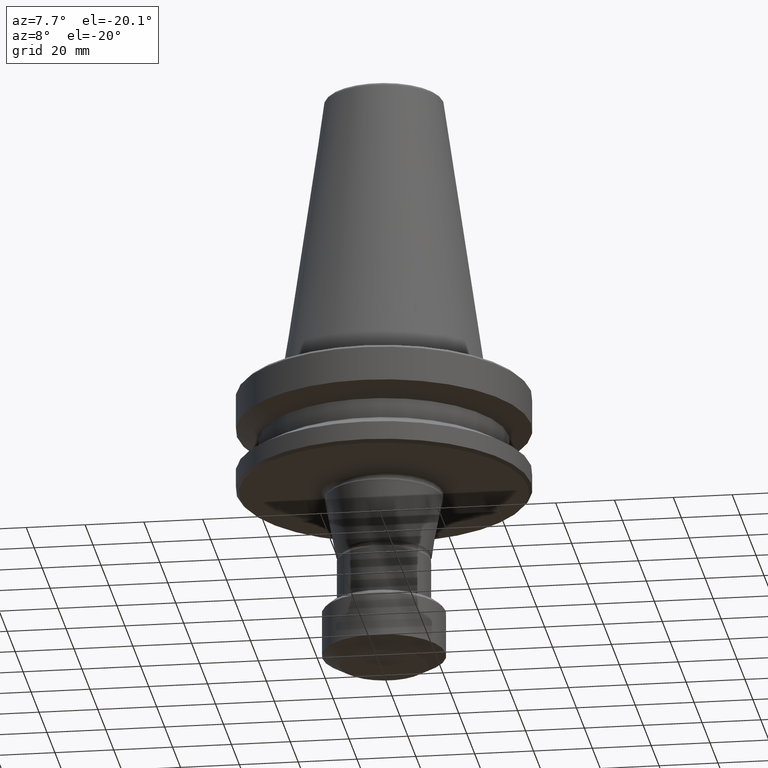
[diagram: clean part render]
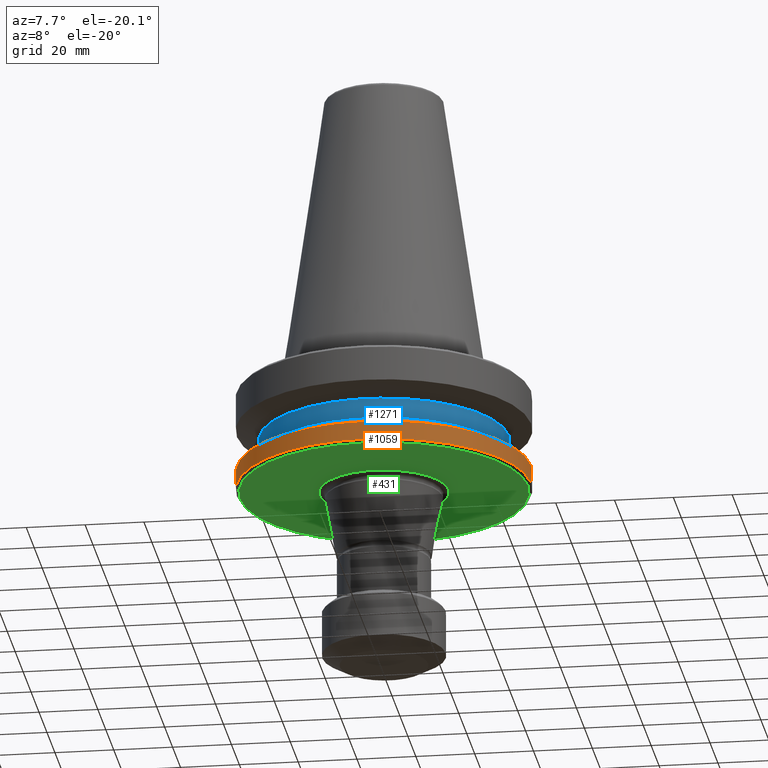
[diagram: same view with three faces highlighted in distinct colors, each labeled with its STEP entity id]
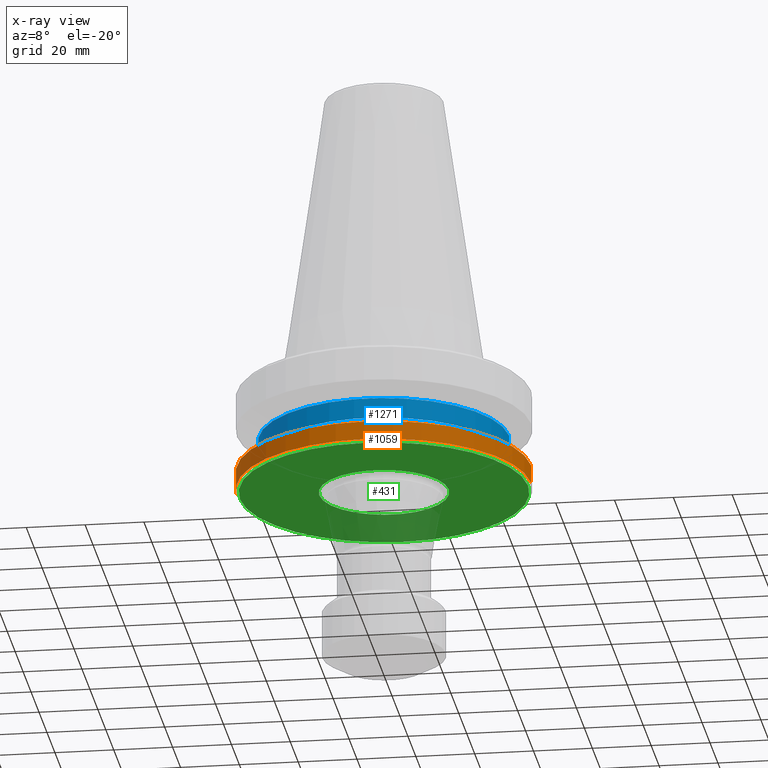
[diagram: x-ray of the same camera — body ghosted, the three highlighted faces saturated]
A machine part, auxiliary view with three faces highlighted in distinct colors.
The next image is the same camera in x-ray (body ghosted, the three faces saturated) — at least one of them is partly hidden behind the body in this view.
Their STEP definitions:

[orange] entity #1059 — the highlighted cylindrical surface (partial cylindrical patch) has radius 50 mm, axis along (-0, -0, 1).
#14 = DIRECTION ( 'NONE',  ( 1.000000000000000000, 0.0000000000000000000, 0.0000000000000000000 ) ) ;
#132 = LINE ( 'NONE', #1228, #381 ) ;
#133 = VECTOR ( 'NONE', #1341, 1000.000000000000000 ) ;
#135 = DIRECTION ( 'NONE',  ( -0.0000000000000000000, -0.0000000000000000000, 1.000000000000000000 ) ) ;
#151 = ORIENTED_EDGE ( 'NONE', *, *, #1007, .F. ) ;
#225 = EDGE_CURVE ( 'NONE', #1255, #874, #1166, .T. ) ;
#244 = CARTESIAN_POINT ( 'NONE',  ( 0.0000000000000000000, 0.0000000000000000000, 107.2567600161838600 ) ) ;
#248 = CARTESIAN_POINT ( 'NONE',  ( -50.00000000000704100, 6.123233995737628300E-015, 107.2567600161838600 ) ) ;
#290 = DIRECTION ( 'NONE',  ( 1.000000000000000000, 0.0000000000000000000, 0.0000000000000000000 ) ) ;
#293 = FACE_OUTER_BOUND ( 'NONE', #1067, .T. ) ;
#343 = CARTESIAN_POINT ( 'NONE',  ( -50.00000000000704100, 6.123233995737628300E-015, -30.69977999677519900 ) ) ;
#348 = AXIS2_PLACEMENT_3D ( 'NONE', #244, #135, #14 ) ;
#381 = VECTOR ( 'NONE', #591, 1000.000000000000000 ) ;
#411 = DIRECTION ( 'NONE',  ( -0.0000000000000000000, -0.0000000000000000000, 1.000000000000000000 ) ) ;
#470 = EDGE_CURVE ( 'NONE', #1255, #1045, #1296, .T. ) ;
#475 = VERTEX_POINT ( 'NONE', #802 ) ;
#542 = CARTESIAN_POINT ( 'NONE',  ( 0.0000000000000000000, 0.0000000000000000000, -30.69977999677519900 ) ) ;
#588 = CARTESIAN_POINT ( 'NONE',  ( -50.00000000000704100, 6.123233995737627500E-015, -37.00000000000214600 ) ) ;
#591 = DIRECTION ( 'NONE',  ( -0.0000000000000000000, -0.0000000000000000000, 1.000000000000000000 ) ) ;
#596 = CARTESIAN_POINT ( 'NONE',  ( 0.0000000000000000000, 0.0000000000000000000, -37.00000000000214600 ) ) ;
#658 = DIRECTION ( 'NONE',  ( 1.000000000000000000, 0.0000000000000000000, 0.0000000000000000000 ) ) ;
#741 = CARTESIAN_POINT ( 'NONE',  ( 50.00000000000704100, 0.0000000000000000000, -37.00000000000214600 ) ) ;
#802 = CARTESIAN_POINT ( 'NONE',  ( 50.00000000000704100, 0.0000000000000000000, -30.69977999677519900 ) ) ;
#874 = VERTEX_POINT ( 'NONE', #741 ) ;
#888 = CIRCLE ( 'NONE', #1112, 50.00000000000704100 ) ;
#1007 = EDGE_CURVE ( 'NONE', #1045, #475, #888, .T. ) ;
#1039 = ORIENTED_EDGE ( 'NONE', *, *, #470, .F. ) ;
#1045 = VERTEX_POINT ( 'NONE', #343 ) ;
#1059 = ADVANCED_FACE ( 'NONE', ( #293 ), #1387, .T. ) ;
#1067 = EDGE_LOOP ( 'NONE', ( #1039, #1327, #1221, #151 ) ) ;
#1112 = AXIS2_PLACEMENT_3D ( 'NONE', #542, #1290, #658 ) ;
#1166 = CIRCLE ( 'NONE', #1242, 50.00000000000704100 ) ;
#1221 = ORIENTED_EDGE ( 'NONE', *, *, #1274, .T. ) ;
#1228 = CARTESIAN_POINT ( 'NONE',  ( 50.00000000000704100, 0.0000000000000000000, 107.2567600161838600 ) ) ;
#1242 = AXIS2_PLACEMENT_3D ( 'NONE', #596, #411, #290 ) ;
#1255 = VERTEX_POINT ( 'NONE', #588 ) ;
#1274 = EDGE_CURVE ( 'NONE', #874, #475, #132, .T. ) ;
#1290 = DIRECTION ( 'NONE',  ( -0.0000000000000000000, -0.0000000000000000000, 1.000000000000000000 ) ) ;
#1296 = LINE ( 'NONE', #248, #133 ) ;
#1327 = ORIENTED_EDGE ( 'NONE', *, *, #225, .T. ) ;
#1341 = DIRECTION ( 'NONE',  ( -0.0000000000000000000, -0.0000000000000000000, 1.000000000000000000 ) ) ;
#1387 = CYLINDRICAL_SURFACE ( 'NONE', #348, 50.00000000000704100 ) ;

[blue] entity #1271 — the highlighted cylindrical surface (partial cylindrical patch) has radius 42.5 mm, axis along (-0, -0, 1).
#16 = ORIENTED_EDGE ( 'NONE', *, *, #736, .F. ) ;
#35 = CARTESIAN_POINT ( 'NONE',  ( -42.49999999999965200, 5.204748896376208300E-015, -26.70000000000111100 ) ) ;
#52 = LINE ( 'NONE', #182, #1149 ) ;
#59 = CARTESIAN_POINT ( 'NONE',  ( 0.0000000000000000000, 0.0000000000000000000, -26.70000000000111100 ) ) ;
#67 = VECTOR ( 'NONE', #1124, 1000.000000000000000 ) ;
#88 = VERTEX_POINT ( 'NONE', #1116 ) ;
#101 = CARTESIAN_POINT ( 'NONE',  ( -42.49999999999965200, 5.204748896376208300E-015, -19.70000000000071700 ) ) ;
#152 = VERTEX_POINT ( 'NONE', #101 ) ;
#179 = EDGE_CURVE ( 'NONE', #88, #723, #640, .T. ) ;
#182 = CARTESIAN_POINT ( 'NONE',  ( -42.49999999999965200, 5.204748896376208300E-015, 107.2567600161838600 ) ) ;
#286 = EDGE_CURVE ( 'NONE', #152, #723, #653, .T. ) ;
#410 = ORIENTED_EDGE ( 'NONE', *, *, #286, .F. ) ;
#415 = FACE_OUTER_BOUND ( 'NONE', #770, .T. ) ;
#455 = EDGE_CURVE ( 'NONE', #1079, #88, #980, .T. ) ;
#488 = ORIENTED_EDGE ( 'NONE', *, *, #455, .T. ) ;
#577 = DIRECTION ( 'NONE',  ( 1.000000000000000000, 0.0000000000000000000, 0.0000000000000000000 ) ) ;
#631 = AXIS2_PLACEMENT_3D ( 'NONE', #933, #831, #929 ) ;
#640 = LINE ( 'NONE', #915, #67 ) ;
#653 = CIRCLE ( 'NONE', #631, 42.49999999999965200 ) ;
#695 = CARTESIAN_POINT ( 'NONE',  ( 0.0000000000000000000, 0.0000000000000000000, 107.2567600161838600 ) ) ;
#707 = CARTESIAN_POINT ( 'NONE',  ( 42.49999999999965200, 0.0000000000000000000, -19.70000000000071700 ) ) ;
#723 = VERTEX_POINT ( 'NONE', #707 ) ;
#736 = EDGE_CURVE ( 'NONE', #1079, #152, #52, .T. ) ;
#760 = ORIENTED_EDGE ( 'NONE', *, *, #179, .T. ) ;
#770 = EDGE_LOOP ( 'NONE', ( #16, #488, #760, #410 ) ) ;
#831 = DIRECTION ( 'NONE',  ( -0.0000000000000000000, -0.0000000000000000000, 1.000000000000000000 ) ) ;
#856 = DIRECTION ( 'NONE',  ( -0.0000000000000000000, -0.0000000000000000000, 1.000000000000000000 ) ) ;
#915 = CARTESIAN_POINT ( 'NONE',  ( 42.49999999999965200, 0.0000000000000000000, 107.2567600161838600 ) ) ;
#921 = DIRECTION ( 'NONE',  ( -0.0000000000000000000, -0.0000000000000000000, 1.000000000000000000 ) ) ;
#929 = DIRECTION ( 'NONE',  ( 1.000000000000000000, 0.0000000000000000000, 0.0000000000000000000 ) ) ;
#933 = CARTESIAN_POINT ( 'NONE',  ( 0.0000000000000000000, 0.0000000000000000000, -19.70000000000071700 ) ) ;
#944 = CYLINDRICAL_SURFACE ( 'NONE', #1035, 42.49999999999965200 ) ;
#980 = CIRCLE ( 'NONE', #1174, 42.49999999999965200 ) ;
#1014 = DIRECTION ( 'NONE',  ( 1.000000000000000000, 0.0000000000000000000, 0.0000000000000000000 ) ) ;
#1035 = AXIS2_PLACEMENT_3D ( 'NONE', #695, #1331, #1014 ) ;
#1079 = VERTEX_POINT ( 'NONE', #35 ) ;
#1116 = CARTESIAN_POINT ( 'NONE',  ( 42.49999999999965200, 0.0000000000000000000, -26.70000000000111100 ) ) ;
#1124 = DIRECTION ( 'NONE',  ( -0.0000000000000000000, -0.0000000000000000000, 1.000000000000000000 ) ) ;
#1149 = VECTOR ( 'NONE', #921, 1000.000000000000000 ) ;
#1174 = AXIS2_PLACEMENT_3D ( 'NONE', #59, #856, #577 ) ;
#1271 = ADVANCED_FACE ( 'NONE', ( #415 ), #944, .T. ) ;
#1331 = DIRECTION ( 'NONE',  ( -0.0000000000000000000, -0.0000000000000000000, 1.000000000000000000 ) ) ;

[green] entity #431 — the highlighted planar face has unit normal (0, -0, 1).
#81 = VERTEX_POINT ( 'NONE', #963 ) ;
#137 = CIRCLE ( 'NONE', #1110, 49.00000000000703400 ) ;
#146 = EDGE_LOOP ( 'NONE', ( #1084, #794 ) ) ;
#161 = EDGE_CURVE ( 'NONE', #808, #616, #137, .T. ) ;
#173 = DIRECTION ( 'NONE',  ( -0.0000000000000000000, -0.0000000000000000000, 1.000000000000000000 ) ) ;
#211 = DIRECTION ( 'NONE',  ( 1.000000000000000000, 0.0000000000000000000, 0.0000000000000000000 ) ) ;
#214 = AXIS2_PLACEMENT_3D ( 'NONE', #809, #173, #914 ) ;
#246 = DIRECTION ( 'NONE',  ( -0.0000000000000000000, -0.0000000000000000000, 1.000000000000000000 ) ) ;
#323 = EDGE_CURVE ( 'NONE', #334, #81, #1362, .T. ) ;
#334 = VERTEX_POINT ( 'NONE', #1334 ) ;
#365 = CARTESIAN_POINT ( 'NONE',  ( 0.0000000000000000000, 49.00000000000703400, -38.00000000000214600 ) ) ;
#367 = EDGE_CURVE ( 'NONE', #81, #334, #765, .T. ) ;
#407 = CARTESIAN_POINT ( 'NONE',  ( 49.00000000000703400, 0.0000000000000000000, -38.00000000000214600 ) ) ;
#431 = ADVANCED_FACE ( 'NONE', ( #1017, #1263 ), #1233, .F. ) ;
#518 = DIRECTION ( 'NONE',  ( 1.000000000000000000, 0.0000000000000000000, 0.0000000000000000000 ) ) ;
#551 = CARTESIAN_POINT ( 'NONE',  ( 0.0000000000000000000, 0.0000000000000000000, -38.00000000000214600 ) ) ;
#554 = AXIS2_PLACEMENT_3D ( 'NONE', #1151, #1385, #518 ) ;
#616 = VERTEX_POINT ( 'NONE', #776 ) ;
#625 = AXIS2_PLACEMENT_3D ( 'NONE', #764, #1206, #211 ) ;
#686 = EDGE_CURVE ( 'NONE', #616, #808, #1217, .T. ) ;
#764 = CARTESIAN_POINT ( 'NONE',  ( 0.0000000000000000000, 0.0000000000000000000, -38.00000000000214600 ) ) ;
#765 = CIRCLE ( 'NONE', #554, 22.00000000000656900 ) ;
#776 = CARTESIAN_POINT ( 'NONE',  ( -49.00000000000703400, 6.062001655780259900E-015, -38.00000000000214600 ) ) ;
#794 = ORIENTED_EDGE ( 'NONE', *, *, #686, .F. ) ;
#808 = VERTEX_POINT ( 'NONE', #407 ) ;
#809 = CARTESIAN_POINT ( 'NONE',  ( 0.0000000000000000000, 0.0000000000000000000, -38.00000000000214600 ) ) ;
#914 = DIRECTION ( 'NONE',  ( 1.000000000000000000, 0.0000000000000000000, 0.0000000000000000000 ) ) ;
#963 = CARTESIAN_POINT ( 'NONE',  ( 22.00000000000656900, 0.0000000000000000000, -38.00000000000214600 ) ) ;
#974 = ORIENTED_EDGE ( 'NONE', *, *, #367, .T. ) ;
#999 = DIRECTION ( 'NONE',  ( 1.000000000000000000, 0.0000000000000000000, 0.0000000000000000000 ) ) ;
#1000 = DIRECTION ( 'NONE',  ( 1.000000000000000000, 0.0000000000000000000, 0.0000000000000000000 ) ) ;
#1017 = FACE_OUTER_BOUND ( 'NONE', #146, .T. ) ;
#1034 = EDGE_LOOP ( 'NONE', ( #974, #1075 ) ) ;
#1061 = DIRECTION ( 'NONE',  ( 0.0000000000000000000, -0.0000000000000000000, 1.000000000000000000 ) ) ;
#1075 = ORIENTED_EDGE ( 'NONE', *, *, #323, .T. ) ;
#1084 = ORIENTED_EDGE ( 'NONE', *, *, #161, .F. ) ;
#1110 = AXIS2_PLACEMENT_3D ( 'NONE', #551, #246, #1000 ) ;
#1151 = CARTESIAN_POINT ( 'NONE',  ( 0.0000000000000000000, 0.0000000000000000000, -38.00000000000214600 ) ) ;
#1206 = DIRECTION ( 'NONE',  ( -0.0000000000000000000, -0.0000000000000000000, 1.000000000000000000 ) ) ;
#1217 = CIRCLE ( 'NONE', #214, 49.00000000000703400 ) ;
#1233 = PLANE ( 'NONE',  #1358 ) ;
#1263 = FACE_BOUND ( 'NONE', #1034, .T. ) ;
#1334 = CARTESIAN_POINT ( 'NONE',  ( -22.00000000000656900, 2.694222958124981400E-015, -38.00000000000214600 ) ) ;
#1358 = AXIS2_PLACEMENT_3D ( 'NONE', #365, #1061, #999 ) ;
#1362 = CIRCLE ( 'NONE', #625, 22.00000000000656900 ) ;
#1385 = DIRECTION ( 'NONE',  ( -0.0000000000000000000, -0.0000000000000000000, 1.000000000000000000 ) ) ;